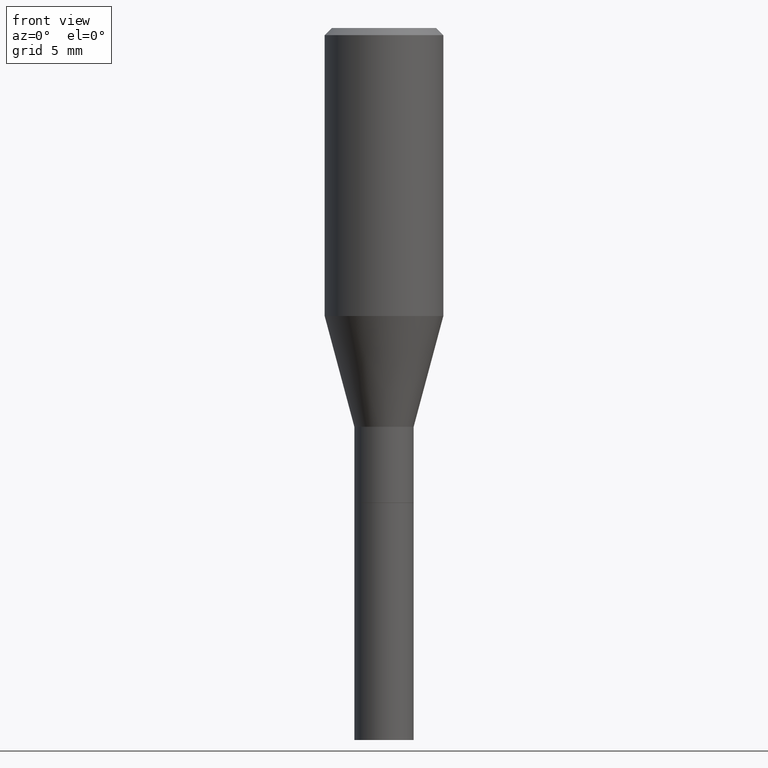
[diagram: clean part render]
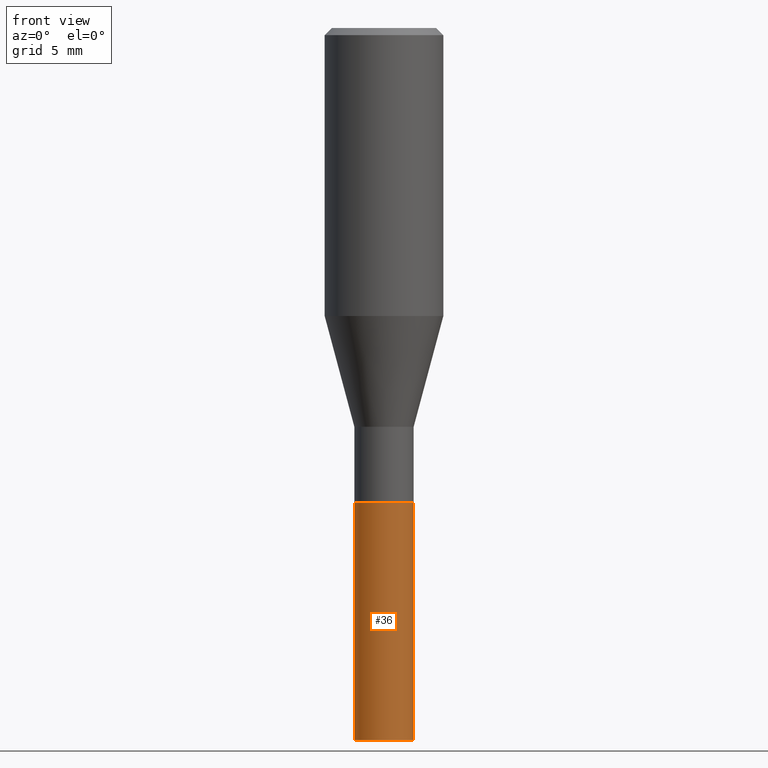
[diagram: same view with one face highlighted and labeled with its STEP entity id]
A machine part, front view. The second image highlights one B-rep face of the part: STEP entity #36.
In plain terms, the highlighted cylindrical surface (edge-blend (fillet) strip) has radius 1.5875 mm, axis along (-0, 0, 1).
Its self-contained STEP definition (entity closure, byte-faithful):
#10 = CYLINDRICAL_SURFACE ( 'NONE', #289, 0.06250000000000000000 ) ;
#12 = CARTESIAN_POINT ( 'NONE',  ( -0.06250000000000000000, -3.920262463703869855E-15, -1.500000000000000222 ) ) ;
#14 = CARTESIAN_POINT ( 'NONE',  ( 0.06250000000000000000, -4.364351673553916694E-16, 3.047610484872459871E-30 ) ) ;
#18 = CARTESIAN_POINT ( 'NONE',  ( 3.668203209277704895E-29, -5.237222008264718177E-15, -1.500000000000000222 ) ) ;
#35 = ORIENTED_EDGE ( 'NONE', *, *, #141, .T. ) ;
#36 = ADVANCED_FACE ( 'NONE', ( #159 ), #10, .T. ) ;
#52 = CARTESIAN_POINT ( 'NONE',  ( 0.06250000000000000000, -5.673657175620109846E-15, -1.500000000000000222 ) ) ;
#79 = DIRECTION ( 'NONE',  ( 1.000000000000000000, -6.982962677686266711E-15, 4.876176775795935793E-29 ) ) ;
#114 = CARTESIAN_POINT ( 'NONE',  ( 0.000000000000000000, 0.000000000000000000, 0.000000000000000000 ) ) ;
#141 = EDGE_CURVE ( 'NONE', #292, #319, #255, .T. ) ;
#146 = LINE ( 'NONE', #320, #359 ) ;
#155 = AXIS2_PLACEMENT_3D ( 'NONE', #258, #396, #197 ) ;
#159 = FACE_OUTER_BOUND ( 'NONE', #367, .T. ) ;
#181 = ORIENTED_EDGE ( 'NONE', *, *, #290, .F. ) ;
#184 = CARTESIAN_POINT ( 'NONE',  ( 0.06250000000000000000, -3.927916506198537646E-15, -1.000000000000000222 ) ) ;
#192 = ORIENTED_EDGE ( 'NONE', *, *, #221, .F. ) ;
#197 = DIRECTION ( 'NONE',  ( 1.000000000000000000, -6.982962677686262766E-15, 0.000000000000000000 ) ) ;
#206 = DIRECTION ( 'NONE',  ( 1.000000000000000000, -6.982962677686262766E-15, 0.000000000000000000 ) ) ;
#218 = ORIENTED_EDGE ( 'NONE', *, *, #310, .T. ) ;
#221 = EDGE_CURVE ( 'NONE', #292, #356, #146, .T. ) ;
#241 = AXIS2_PLACEMENT_3D ( 'NONE', #18, #459, #206 ) ;
#251 = LINE ( 'NONE', #14, #344 ) ;
#255 = CIRCLE ( 'NONE', #241, 0.06250000000000000000 ) ;
#258 = CARTESIAN_POINT ( 'NONE',  ( 2.445468806185136877E-29, -3.491481338843145977E-15, -1.000000000000000222 ) ) ;
#263 = VERTEX_POINT ( 'NONE', #184 ) ;
#276 = DIRECTION ( 'NONE',  ( -2.445468806185136877E-29, 3.491481338843145188E-15, 1.000000000000000000 ) ) ;
#289 = AXIS2_PLACEMENT_3D ( 'NONE', #114, #331, #79 ) ;
#290 = EDGE_CURVE ( 'NONE', #356, #263, #314, .T. ) ;
#292 = VERTEX_POINT ( 'NONE', #12 ) ;
#310 = EDGE_CURVE ( 'NONE', #319, #263, #251, .T. ) ;
#314 = CIRCLE ( 'NONE', #155, 0.06250000000000000000 ) ;
#319 = VERTEX_POINT ( 'NONE', #52 ) ;
#320 = CARTESIAN_POINT ( 'NONE',  ( -0.06250000000000000000, 4.440892098500626162E-16, -3.074334431409316114E-30 ) ) ;
#331 = DIRECTION ( 'NONE',  ( -2.445468806185136597E-29, 3.491481338843145583E-15, 1.000000000000000000 ) ) ;
#344 = VECTOR ( 'NONE', #436, 39.37007874015748143 ) ;
#356 = VERTEX_POINT ( 'NONE', #448 ) ;
#359 = VECTOR ( 'NONE', #276, 39.37007874015748143 ) ;
#367 = EDGE_LOOP ( 'NONE', ( #192, #35, #218, #181 ) ) ;
#396 = DIRECTION ( 'NONE',  ( -2.445468806185136597E-29, 3.491481338843145583E-15, 1.000000000000000000 ) ) ;
#436 = DIRECTION ( 'NONE',  ( -2.445468806185136877E-29, 3.491481338843145188E-15, 1.000000000000000000 ) ) ;
#448 = CARTESIAN_POINT ( 'NONE',  ( -0.06250000000000000000, -3.920262463703869855E-15, -1.000000000000000222 ) ) ;
#459 = DIRECTION ( 'NONE',  ( -2.445468806185136597E-29, 3.491481338843145583E-15, 1.000000000000000000 ) ) ;